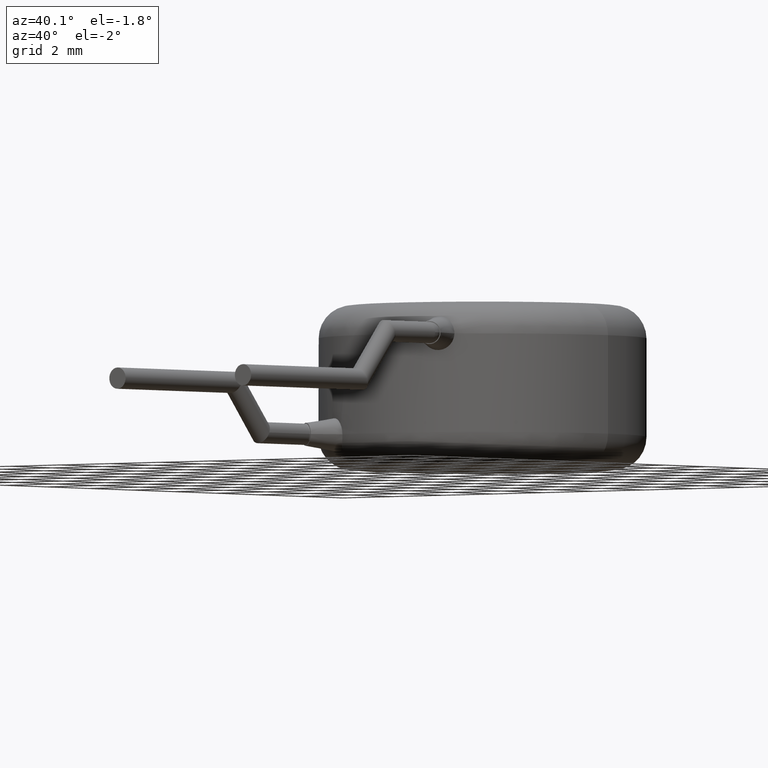
[diagram: clean part render]
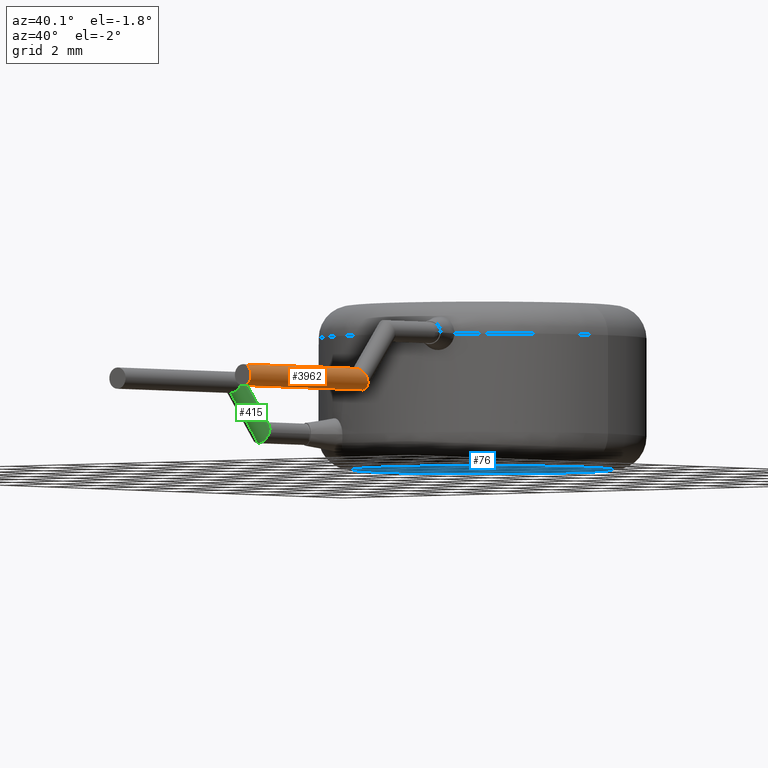
[diagram: same view with three faces highlighted in distinct colors, each labeled with its STEP entity id]
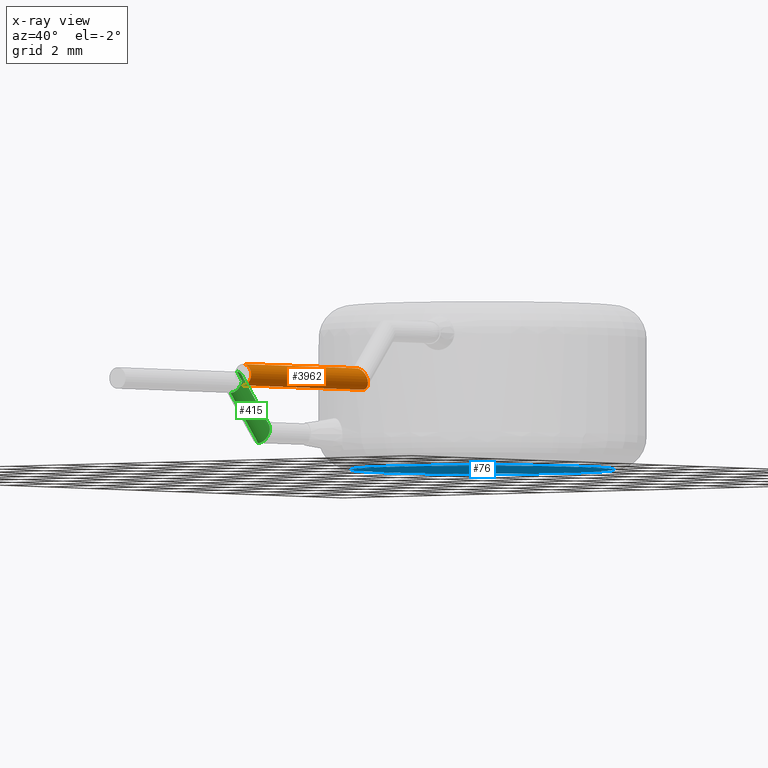
[diagram: x-ray of the same camera — body ghosted, the three highlighted faces saturated]
A machine part, auxiliary view with three faces highlighted in distinct colors.
The next image is the same camera in x-ray (body ghosted, the three faces saturated) — at least one of them is partly hidden behind the body in this view.
Their STEP definitions:

[orange] entity #3962 — the highlighted cylindrical surface (edge-blend (fillet) strip) has radius 0.325 mm, axis along (0, -1, -0).
#116 = EDGE_CURVE ( 'NONE', #1240, #3349, #3076, .T. ) ;
#387 = DIRECTION ( 'NONE',  ( 0.0000000000000000000, -1.000000000000000000, -2.365532012695646200E-016 ) ) ;
#412 = DIRECTION ( 'NONE',  ( 0.0000000000000000000, 0.0000000000000000000, -1.000000000000000000 ) ) ;
#446 = EDGE_CURVE ( 'NONE', #3349, #1335, #3664, .T. ) ;
#608 = CARTESIAN_POINT ( 'NONE',  ( 2.499999999999999100, -8.948404386894383200, 2.824999999999998800 ) ) ;
#677 = DIRECTION ( 'NONE',  ( 0.0000000000000000000, 0.0000000000000000000, -1.000000000000000000 ) ) ;
#716 = CARTESIAN_POINT ( 'NONE',  ( 3.149999999999998600, -8.948404386894383200, 2.824999999999998800 ) ) ;
#752 = CARTESIAN_POINT ( 'NONE',  ( 3.149999999999998600, -8.651595613105618200, 2.175000000000000300 ) ) ;
#857 = CARTESIAN_POINT ( 'NONE',  ( 2.499999999999999100, -8.651595613105618200, 2.175000000000000300 ) ) ;
#867 = DIRECTION ( 'NONE',  ( 0.0000000000000000000, -1.000000000000000000, -2.365532012695646200E-016 ) ) ;
#881 = AXIS2_PLACEMENT_3D ( 'NONE', #3857, #867, #677 ) ;
#958 = EDGE_CURVE ( 'NONE', #3297, #1240, #2089, .T. ) ;
#1224 = CARTESIAN_POINT ( 'NONE',  ( 2.499999999999999100, -14.30000000000000100, 2.174999999999998900 ) ) ;
#1240 = VERTEX_POINT ( 'NONE', #857 ) ;
#1335 = VERTEX_POINT ( 'NONE', #2784 ) ;
#1433 = AXIS2_PLACEMENT_3D ( 'NONE', #3959, #387, #412 ) ;
#1604 = CARTESIAN_POINT ( 'NONE',  ( 2.499999999999999100, -8.800000000000000700, 2.175000000000000300 ) ) ;
#2089 =( BOUNDED_CURVE ( )  B_SPLINE_CURVE ( 3, ( #2320, #716, #752, #3351 ),
 .UNSPECIFIED., .F., .T. ) 
 B_SPLINE_CURVE_WITH_KNOTS ( ( 4, 4 ),
 ( 3.141592653589793100, 6.283185307179586200 ),
 .UNSPECIFIED. ) 
 CURVE ( )  GEOMETRIC_REPRESENTATION_ITEM ( )  RATIONAL_B_SPLINE_CURVE ( ( 1.000000000000000000, 0.3333333333333333700, 0.3333333333333333700, 1.000000000000000000 ) ) 
 REPRESENTATION_ITEM ( '' )  );
#2277 = EDGE_LOOP ( 'NONE', ( #4120, #2672, #3326, #3140 ) ) ;
#2320 = CARTESIAN_POINT ( 'NONE',  ( 2.499999999999999100, -8.948404386894383200, 2.824999999999998800 ) ) ;
#2619 = DIRECTION ( 'NONE',  ( 0.0000000000000000000, -1.000000000000000000, -2.365532012695646200E-016 ) ) ;
#2672 = ORIENTED_EDGE ( 'NONE', *, *, #3886, .T. ) ;
#2784 = CARTESIAN_POINT ( 'NONE',  ( 2.499999999999999100, -14.30000000000000100, 2.824999999999997500 ) ) ;
#2906 = CYLINDRICAL_SURFACE ( 'NONE', #881, 0.3249999999999993400 ) ;
#3029 = DIRECTION ( 'NONE',  ( 0.0000000000000000000, -1.000000000000000000, -2.365532012695646200E-016 ) ) ;
#3076 = LINE ( 'NONE', #1604, #3198 ) ;
#3140 = ORIENTED_EDGE ( 'NONE', *, *, #116, .F. ) ;
#3198 = VECTOR ( 'NONE', #2619, 1000.000000000000000 ) ;
#3297 = VERTEX_POINT ( 'NONE', #608 ) ;
#3326 = ORIENTED_EDGE ( 'NONE', *, *, #446, .F. ) ;
#3349 = VERTEX_POINT ( 'NONE', #1224 ) ;
#3351 = CARTESIAN_POINT ( 'NONE',  ( 2.499999999999999100, -8.651595613105618200, 2.175000000000000300 ) ) ;
#3453 = CARTESIAN_POINT ( 'NONE',  ( 2.499999999999999100, -8.800000000000000700, 2.824999999999998800 ) ) ;
#3664 = CIRCLE ( 'NONE', #1433, 0.3249999999999993400 ) ;
#3786 = FACE_OUTER_BOUND ( 'NONE', #2277, .T. ) ;
#3857 = CARTESIAN_POINT ( 'NONE',  ( 2.499999999999999100, -8.800000000000000700, 2.499999999999999600 ) ) ;
#3886 = EDGE_CURVE ( 'NONE', #3297, #1335, #4012, .T. ) ;
#3959 = CARTESIAN_POINT ( 'NONE',  ( 2.499999999999999100, -14.30000000000000100, 2.499999999999998200 ) ) ;
#3962 = ADVANCED_FACE ( 'NONE', ( #3786 ), #2906, .T. ) ;
#4012 = LINE ( 'NONE', #3453, #4228 ) ;
#4120 = ORIENTED_EDGE ( 'NONE', *, *, #958, .F. ) ;
#4228 = VECTOR ( 'NONE', #3029, 1000.000000000000000 ) ;

[blue] entity #76 — the highlighted planar face has unit normal (0, 0, 1).
#17 = CARTESIAN_POINT ( 'NONE',  ( 0.0000000000000000000, 0.0000000000000000000, 0.0000000000000000000 ) ) ;
#76 = ADVANCED_FACE ( 'NONE', ( #560 ), #4196, .F. ) ;
#100 = EDGE_CURVE ( 'NONE', #1704, #592, #2915, .T. ) ;
#314 = DIRECTION ( 'NONE',  ( 1.000000000000000000, 0.0000000000000000000, 0.0000000000000000000 ) ) ;
#341 = CARTESIAN_POINT ( 'NONE',  ( 0.0000000000000000000, 0.0000000000000000000, 0.0000000000000000000 ) ) ;
#560 = FACE_OUTER_BOUND ( 'NONE', #3856, .T. ) ;
#592 = VERTEX_POINT ( 'NONE', #2124 ) ;
#636 = ORIENTED_EDGE ( 'NONE', *, *, #100, .T. ) ;
#1005 = DIRECTION ( 'NONE',  ( 1.000000000000000000, 0.0000000000000000000, 0.0000000000000000000 ) ) ;
#1304 = CARTESIAN_POINT ( 'NONE',  ( 0.0000000000000000000, 0.0000000000000000000, 0.0000000000000000000 ) ) ;
#1313 = DIRECTION ( 'NONE',  ( -0.0000000000000000000, -0.0000000000000000000, -1.000000000000000000 ) ) ;
#1317 = DIRECTION ( 'NONE',  ( -0.0000000000000000000, -0.0000000000000000000, -1.000000000000000000 ) ) ;
#1704 = VERTEX_POINT ( 'NONE', #1707 ) ;
#1707 = CARTESIAN_POINT ( 'NONE',  ( 4.000000000000000000, 0.0000000000000000000, 0.0000000000000000000 ) ) ;
#2014 = EDGE_CURVE ( 'NONE', #592, #1704, #2542, .T. ) ;
#2124 = CARTESIAN_POINT ( 'NONE',  ( -4.000000000000000000, 5.510910596163088600E-016, 0.0000000000000000000 ) ) ;
#2171 = AXIS2_PLACEMENT_3D ( 'NONE', #341, #1313, #314 ) ;
#2250 = DIRECTION ( 'NONE',  ( 0.0000000000000000000, 0.0000000000000000000, 1.000000000000000000 ) ) ;
#2493 = AXIS2_PLACEMENT_3D ( 'NONE', #17, #1317, #1005 ) ;
#2542 = CIRCLE ( 'NONE', #2493, 4.000000000000000000 ) ;
#2588 = DIRECTION ( 'NONE',  ( 1.000000000000000000, 0.0000000000000000000, -0.0000000000000000000 ) ) ;
#2915 = CIRCLE ( 'NONE', #2171, 4.000000000000000000 ) ;
#2973 = AXIS2_PLACEMENT_3D ( 'NONE', #1304, #2250, #2588 ) ;
#3059 = ORIENTED_EDGE ( 'NONE', *, *, #2014, .T. ) ;
#3856 = EDGE_LOOP ( 'NONE', ( #636, #3059 ) ) ;
#4196 = PLANE ( 'NONE',  #2973 ) ;

[green] entity #415 — the highlighted cylindrical surface (edge-blend (fillet) strip) has radius 0.325 mm, axis along (0, -0.6549, 0.7557).
#1 = DIRECTION ( 'NONE',  ( 0.0000000000000000000, -0.7556890827898176100, -0.6549305384178418800 ) ) ;
#72 = FACE_OUTER_BOUND ( 'NONE', #3450, .T. ) ;
#170 = EDGE_CURVE ( 'NONE', #3202, #3125, #975, .T. ) ;
#180 = CARTESIAN_POINT ( 'NONE',  ( -2.500000000000000000, -7.648404386894385200, 0.6750000000000003800 ) ) ;
#366 =( BOUNDED_CURVE ( )  B_SPLINE_CURVE ( 3, ( #601, #2599, #2925, #2617 ),
 .UNSPECIFIED., .F., .F. ) 
 B_SPLINE_CURVE_WITH_KNOTS ( ( 4, 4 ),
 ( 4.712388980384689700, 6.283185307179586200 ),
 .UNSPECIFIED. ) 
 CURVE ( )  GEOMETRIC_REPRESENTATION_ITEM ( )  RATIONAL_B_SPLINE_CURVE ( ( 1.000000000000000000, 0.8047378541243649400, 0.8047378541243649400, 1.000000000000000000 ) ) 
 REPRESENTATION_ITEM ( '' )  );
#384 = VERTEX_POINT ( 'NONE', #588 ) ;
#415 = ADVANCED_FACE ( 'NONE', ( #72 ), #4040, .T. ) ;
#571 = DIRECTION ( 'NONE',  ( 0.0000000000000000000, -0.6549305384178414300, 0.7556890827898179500 ) ) ;
#588 = CARTESIAN_POINT ( 'NONE',  ( -2.175000000000001600, -7.500000000000003600, 1.000000000000000000 ) ) ;
#601 = CARTESIAN_POINT ( 'NONE',  ( -2.175000000000001600, -7.500000000000003600, 1.000000000000000000 ) ) ;
#666 = CARTESIAN_POINT ( 'NONE',  ( -2.500000000000000000, -7.500000000000003600, 0.9999999999999997800 ) ) ;
#669 = CARTESIAN_POINT ( 'NONE',  ( -2.500000000000000000, -8.651595613105618200, 2.824999999999998400 ) ) ;
#686 = CARTESIAN_POINT ( 'NONE',  ( -1.850000000000001000, -8.651595613105618200, 2.824999999999998400 ) ) ;
#851 =( BOUNDED_CURVE ( )  B_SPLINE_CURVE ( 3, ( #669, #686, #1726, #3702 ),
 .UNSPECIFIED., .F., .F. ) 
 B_SPLINE_CURVE_WITH_KNOTS ( ( 4, 4 ),
 ( 0.0000000000000000000, 3.141592653589793100 ),
 .UNSPECIFIED. ) 
 CURVE ( )  GEOMETRIC_REPRESENTATION_ITEM ( )  RATIONAL_B_SPLINE_CURVE ( ( 1.000000000000000000, 0.3333333333333333700, 0.3333333333333333700, 1.000000000000000000 ) ) 
 REPRESENTATION_ITEM ( '' )  );
#854 = CARTESIAN_POINT ( 'NONE',  ( -2.175000000000000300, -7.586933277127067200, 0.8096194077712557400 ) ) ;
#873 =( BOUNDED_CURVE ( )  B_SPLINE_CURVE ( 3, ( #180, #2096, #854, #3092 ),
 .UNSPECIFIED., .F., .F. ) 
 B_SPLINE_CURVE_WITH_KNOTS ( ( 4, 4 ),
 ( 3.141592653589793100, 4.712388980384689700 ),
 .UNSPECIFIED. ) 
 CURVE ( )  GEOMETRIC_REPRESENTATION_ITEM ( )  RATIONAL_B_SPLINE_CURVE ( ( 1.000000000000000000, 0.8047378541243649400, 0.8047378541243649400, 1.000000000000000000 ) ) 
 REPRESENTATION_ITEM ( '' )  );
#962 = DIRECTION ( 'NONE',  ( 0.0000000000000000000, -0.6549305384178414300, 0.7556890827898179500 ) ) ;
#975 = LINE ( 'NONE', #1348, #2188 ) ;
#1273 = EDGE_CURVE ( 'NONE', #2184, #1800, #4104, .T. ) ;
#1348 = CARTESIAN_POINT ( 'NONE',  ( -2.500000000000000000, -7.254401048093313000, 1.212852424985797900 ) ) ;
#1425 = CARTESIAN_POINT ( 'NONE',  ( -2.500000000000000000, -8.651595613105618200, 2.824999999999998400 ) ) ;
#1520 = CARTESIAN_POINT ( 'NONE',  ( -2.500000000000000000, -7.745598951906693200, 0.7871475750142016300 ) ) ;
#1726 = CARTESIAN_POINT ( 'NONE',  ( -1.850000000000001000, -8.948404386894383200, 2.174999999999998900 ) ) ;
#1800 = VERTEX_POINT ( 'NONE', #2103 ) ;
#1972 = ORIENTED_EDGE ( 'NONE', *, *, #3607, .T. ) ;
#2096 = CARTESIAN_POINT ( 'NONE',  ( -2.309619407771256000, -7.648404386894384300, 0.6750000000000000400 ) ) ;
#2103 = CARTESIAN_POINT ( 'NONE',  ( -2.500000000000000000, -8.948404386894383200, 2.174999999999998900 ) ) ;
#2184 = VERTEX_POINT ( 'NONE', #3107 ) ;
#2188 = VECTOR ( 'NONE', #3005, 1000.000000000000000 ) ;
#2245 = EDGE_CURVE ( 'NONE', #384, #3202, #366, .T. ) ;
#2323 = VECTOR ( 'NONE', #571, 1000.000000000000000 ) ;
#2472 = EDGE_CURVE ( 'NONE', #3125, #1800, #851, .T. ) ;
#2599 = CARTESIAN_POINT ( 'NONE',  ( -2.175000000000000300, -7.413066722872939000, 1.190380592228743400 ) ) ;
#2617 = CARTESIAN_POINT ( 'NONE',  ( -2.500000000000000000, -7.351595613105621000, 1.324999999999999300 ) ) ;
#2764 = ORIENTED_EDGE ( 'NONE', *, *, #2245, .T. ) ;
#2844 = ORIENTED_EDGE ( 'NONE', *, *, #2472, .T. ) ;
#2865 = AXIS2_PLACEMENT_3D ( 'NONE', #666, #962, #1 ) ;
#2925 = CARTESIAN_POINT ( 'NONE',  ( -2.309619407771256000, -7.351595613105621000, 1.324999999999999500 ) ) ;
#3005 = DIRECTION ( 'NONE',  ( 0.0000000000000000000, -0.6549305384178414300, 0.7556890827898179500 ) ) ;
#3092 = CARTESIAN_POINT ( 'NONE',  ( -2.175000000000001600, -7.500000000000003600, 1.000000000000000000 ) ) ;
#3107 = CARTESIAN_POINT ( 'NONE',  ( -2.500000000000000000, -7.648404386894385200, 0.6750000000000003800 ) ) ;
#3125 = VERTEX_POINT ( 'NONE', #1425 ) ;
#3202 = VERTEX_POINT ( 'NONE', #3506 ) ;
#3446 = ORIENTED_EDGE ( 'NONE', *, *, #1273, .F. ) ;
#3450 = EDGE_LOOP ( 'NONE', ( #2764, #3845, #2844, #3446, #1972 ) ) ;
#3506 = CARTESIAN_POINT ( 'NONE',  ( -2.500000000000000000, -7.351595613105621000, 1.324999999999999300 ) ) ;
#3607 = EDGE_CURVE ( 'NONE', #2184, #384, #873, .T. ) ;
#3702 = CARTESIAN_POINT ( 'NONE',  ( -2.500000000000000000, -8.948404386894383200, 2.174999999999998900 ) ) ;
#3845 = ORIENTED_EDGE ( 'NONE', *, *, #170, .T. ) ;
#4040 = CYLINDRICAL_SURFACE ( 'NONE', #2865, 0.3249999999999994000 ) ;
#4104 = LINE ( 'NONE', #1520, #2323 ) ;